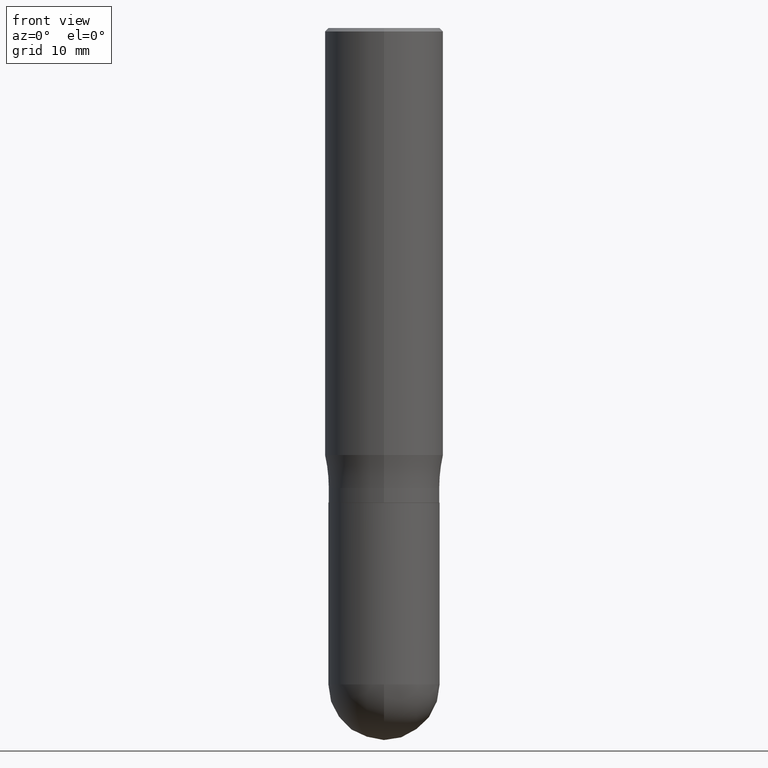
[diagram: clean part render]
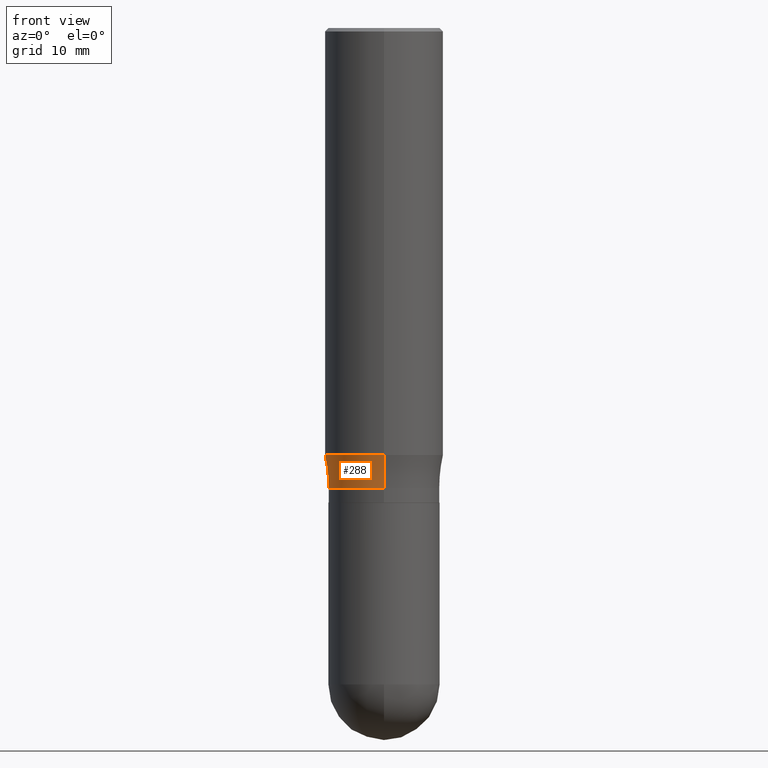
[diagram: same view with one face highlighted and labeled with its STEP entity id]
A machine part, front view. The second image highlights one B-rep face of the part: STEP entity #288.
In plain terms, the highlighted toroidal blend (fillet) surface has major radius 21.8288 mm and minor (blend) radius 15.875 mm.
Its self-contained STEP definition (entity closure, byte-faithful):
#3 = CIRCLE ( 'NONE', #300, 0.6250000000000001110 ) ;
#10 = DIRECTION ( 'NONE',  ( 1.000000000000000000, -7.105427357601001070E-15, 4.926327769175085437E-29 ) ) ;
#23 = CARTESIAN_POINT ( 'NONE',  ( 1.776356839400294641E-15, 0.2499999999999936717, -1.799231703909000002 ) ) ;
#28 = CIRCLE ( 'NONE', #130, 0.6250000000000001110 ) ;
#30 = EDGE_CURVE ( 'NONE', #247, #322, #3, .T. ) ;
#65 = VERTEX_POINT ( 'NONE', #365 ) ;
#71 = CARTESIAN_POINT ( 'NONE',  ( -1.636806451649615157E-15, -0.2344000000000069917, -1.937999999999999279 ) ) ;
#87 = ORIENTED_EDGE ( 'NONE', *, *, #30, .T. ) ;
#98 = EDGE_CURVE ( 'NONE', #65, #249, #28, .T. ) ;
#130 = AXIS2_PLACEMENT_3D ( 'NONE', #214, #370, #330 ) ;
#143 = TOROIDAL_SURFACE ( 'NONE', #429, 0.8594000000000002748, 0.6250000000000000000 ) ;
#145 = CARTESIAN_POINT ( 'NONE',  ( 4.737963682912671420E-29, -6.768431076287002133E-15, -1.938000000000000167 ) ) ;
#153 = ORIENTED_EDGE ( 'NONE', *, *, #98, .F. ) ;
#154 = DIRECTION ( 'NONE',  ( -6.982962677686265922E-15, -1.000000000000000000, 3.278217592397115862E-15 ) ) ;
#160 = CARTESIAN_POINT ( 'NONE',  ( 1.720934506011009380E-15, 0.2343999999999935024, -1.938000000000001055 ) ) ;
#180 = CIRCLE ( 'NONE', #269, 0.2500000000000000000 ) ;
#187 = EDGE_CURVE ( 'NONE', #247, #65, #180, .T. ) ;
#208 = CARTESIAN_POINT ( 'NONE',  ( 6.106404271122349493E-15, 0.8593999999999933914, -1.938000000000003276 ) ) ;
#214 = CARTESIAN_POINT ( 'NONE',  ( -6.001158125203531062E-15, -0.8594000000000070472, -1.937999999999997280 ) ) ;
#247 = VERTEX_POINT ( 'NONE', #23 ) ;
#249 = VERTEX_POINT ( 'NONE', #71 ) ;
#269 = AXIS2_PLACEMENT_3D ( 'NONE', #309, #272, #154 ) ;
#272 = DIRECTION ( 'NONE',  ( -2.444769702225320447E-29, 3.492482495504128512E-15, 1.000000000000000000 ) ) ;
#273 = FACE_OUTER_BOUND ( 'NONE', #513, .T. ) ;
#279 = ORIENTED_EDGE ( 'NONE', *, *, #187, .F. ) ;
#285 = AXIS2_PLACEMENT_3D ( 'NONE', #145, #364, #482 ) ;
#288 = ADVANCED_FACE ( 'NONE', ( #273 ), #143, .F. ) ;
#300 = AXIS2_PLACEMENT_3D ( 'NONE', #208, #10, #368 ) ;
#309 = CARTESIAN_POINT ( 'NONE',  ( 4.398707156999959625E-29, -6.283785231258246916E-15, -1.799231703908999114 ) ) ;
#322 = VERTEX_POINT ( 'NONE', #160 ) ;
#330 = DIRECTION ( 'NONE',  ( -6.982962677686264344E-15, -1.000000000000000000, 0.000000000000000000 ) ) ;
#341 = DIRECTION ( 'NONE',  ( -2.444769702225320447E-29, 3.492482495504128512E-15, 1.000000000000000000 ) ) ;
#356 = CIRCLE ( 'NONE', #285, 0.2344000000000002470 ) ;
#364 = DIRECTION ( 'NONE',  ( -2.444769702225320447E-29, 3.492482495504128512E-15, 1.000000000000000000 ) ) ;
#365 = CARTESIAN_POINT ( 'NONE',  ( -1.745740669421522107E-15, -0.2500000000000062728, -1.799231703908998448 ) ) ;
#368 = DIRECTION ( 'NONE',  ( 7.105427357600999492E-15, 1.000000000000000000, 0.000000000000000000 ) ) ;
#370 = DIRECTION ( 'NONE',  ( -1.000000000000000000, 6.982962677686265922E-15, -4.883557194083112340E-29 ) ) ;
#426 = CARTESIAN_POINT ( 'NONE',  ( 4.739318546386795518E-29, -6.766490834678016834E-15, -1.938000000000000167 ) ) ;
#429 = AXIS2_PLACEMENT_3D ( 'NONE', #426, #341, #498 ) ;
#465 = ORIENTED_EDGE ( 'NONE', *, *, #481, .T. ) ;
#481 = EDGE_CURVE ( 'NONE', #322, #249, #356, .T. ) ;
#482 = DIRECTION ( 'NONE',  ( -6.982962677686265133E-15, -1.000000000000000000, 3.496392483358695161E-15 ) ) ;
#498 = DIRECTION ( 'NONE',  ( -6.982962677686265922E-15, -1.000000000000000000, 3.492482495504128512E-15 ) ) ;
#513 = EDGE_LOOP ( 'NONE', ( #279, #87, #465, #153 ) ) ;